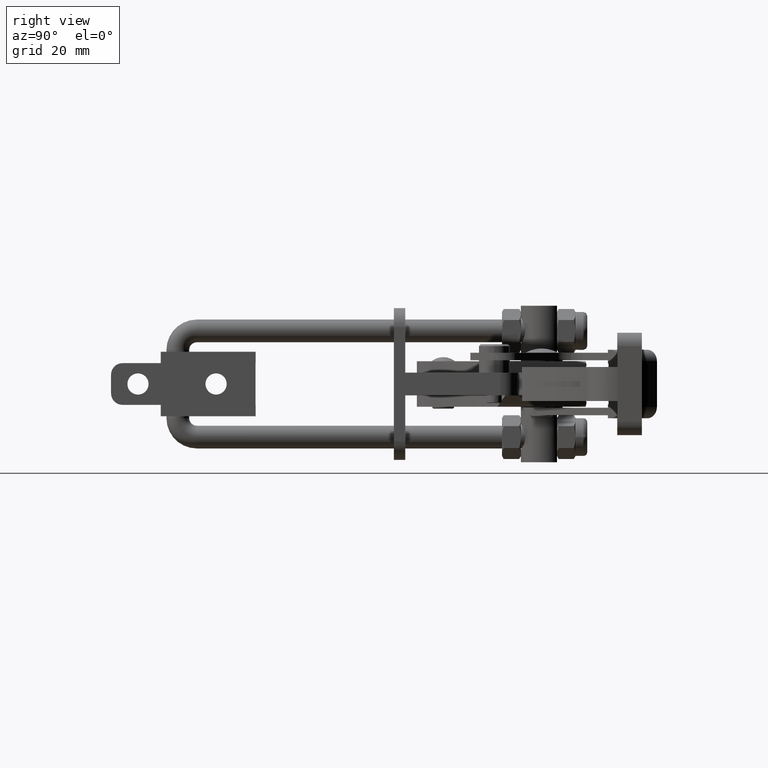
[diagram: clean part render]
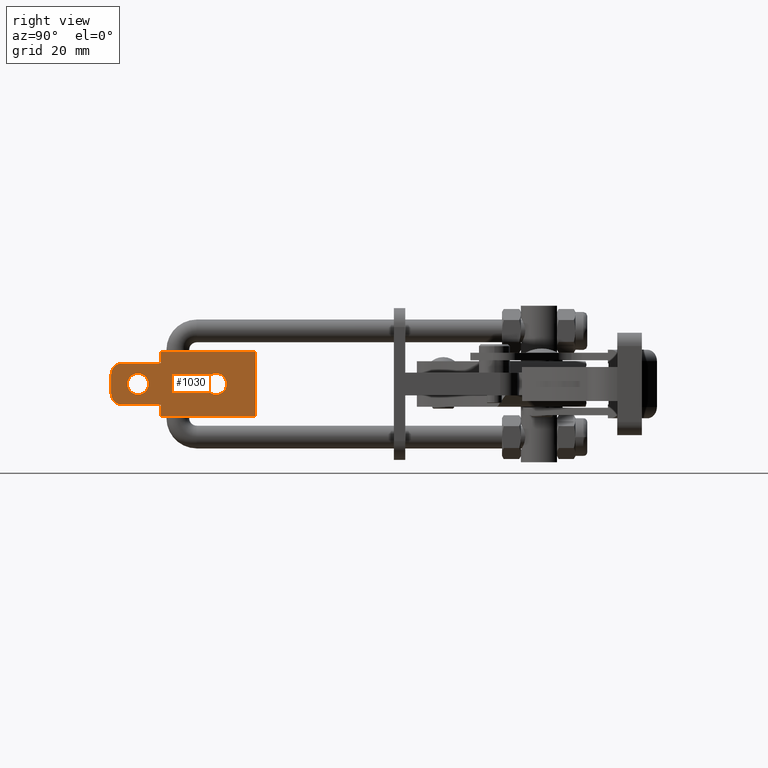
[diagram: same view with one face highlighted and labeled with its STEP entity id]
A machine part, right view. The second image highlights one B-rep face of the part: STEP entity #1030.
In plain terms, the highlighted planar face has unit normal (-1, -0, 0).
Its self-contained STEP definition (entity closure, byte-faithful):
#369 = DIRECTION ( 'NONE',  ( -1.979319486089536500E-015, 1.000000000000000000, 1.540743955509781800E-033 ) ) ;
#371 = CARTESIAN_POINT ( 'NONE',  ( -33.70844199254533200, -71.60965776514484600, 5.499999999999991100 ) ) ;
#418 = DIRECTION ( 'NONE',  ( -1.000000000000000000, -1.979319486089536500E-015, 6.162975822039154700E-033 ) ) ;
#802 = CARTESIAN_POINT ( 'NONE',  ( -33.70844199254539600, -36.50965776514480200, 8.499999999999992900 ) ) ;
#806 = LINE ( 'NONE', #6691, #3451 ) ;
#976 = ORIENTED_EDGE ( 'NONE', *, *, #12833, .F. ) ;
#978 = CARTESIAN_POINT ( 'NONE',  ( -33.70844199254532500, -74.60965776514483100, -2.500000000000002200 ) ) ;
#1030 = ADVANCED_FACE ( 'NONE', ( #10177, #13116, #7134 ), #7761, .F. ) ;
#1104 = LINE ( 'NONE', #7759, #1812 ) ;
#1333 = EDGE_CURVE ( 'NONE', #6115, #4898, #1858, .T. ) ;
#1383 = AXIS2_PLACEMENT_3D ( 'NONE', #11584, #4837, #12710 ) ;
#1530 = CARTESIAN_POINT ( 'NONE',  ( -33.70844199254535300, -61.49975701538111400, -5.500000000000000900 ) ) ;
#1574 = VERTEX_POINT ( 'NONE', #2424 ) ;
#1741 = DIRECTION ( 'NONE',  ( 1.979319486089536500E-015, -1.000000000000000000, -1.540743955509781800E-033 ) ) ;
#1787 = CIRCLE ( 'NONE', #12675, 2.799999999999999800 ) ;
#1812 = VECTOR ( 'NONE', #10091, 1000.000000000000000 ) ;
#1858 = LINE ( 'NONE', #4295, #8206 ) ;
#1884 = DIRECTION ( 'NONE',  ( 0.0000000000000000000, 0.0000000000000000000, 1.000000000000000000 ) ) ;
#2001 = EDGE_LOOP ( 'NONE', ( #2995, #11979 ) ) ;
#2177 = DIRECTION ( 'NONE',  ( 6.162975822039157500E-033, 0.0000000000000000000, 1.000000000000000000 ) ) ;
#2424 = CARTESIAN_POINT ( 'NONE',  ( -33.70844199254533900, -67.50965776514483700, -2.799999999999999800 ) ) ;
#2465 = ORIENTED_EDGE ( 'NONE', *, *, #13809, .T. ) ;
#2500 = VERTEX_POINT ( 'NONE', #7831 ) ;
#2696 = EDGE_CURVE ( 'NONE', #3121, #14350, #5400, .T. ) ;
#2932 = VECTOR ( 'NONE', #369, 1000.000000000000000 ) ;
#2995 = ORIENTED_EDGE ( 'NONE', *, *, #10243, .T. ) ;
#3072 = DIRECTION ( 'NONE',  ( 1.979319486089536500E-015, -1.000000000000000000, -1.540743955509781800E-033 ) ) ;
#3088 = CARTESIAN_POINT ( 'NONE',  ( -33.70844199254533900, -67.50965776514483700, 4.365699918357225300E-017 ) ) ;
#3121 = VERTEX_POINT ( 'NONE', #9950 ) ;
#3142 = ORIENTED_EDGE ( 'NONE', *, *, #9841, .F. ) ;
#3231 = CARTESIAN_POINT ( 'NONE',  ( -33.70844199254533200, -71.60965776514483100, -5.500000000000005300 ) ) ;
#3386 = LINE ( 'NONE', #7962, #11679 ) ;
#3451 = VECTOR ( 'NONE', #5566, 1000.000000000000000 ) ;
#3493 = CARTESIAN_POINT ( 'NONE',  ( -33.70844199254535300, -61.49975701538112100, 8.499999999999992900 ) ) ;
#3735 = VERTEX_POINT ( 'NONE', #12055 ) ;
#4194 = VECTOR ( 'NONE', #3072, 1000.000000000000000 ) ;
#4204 = DIRECTION ( 'NONE',  ( 0.0000000000000000000, 0.0000000000000000000, 1.000000000000000000 ) ) ;
#4205 = EDGE_CURVE ( 'NONE', #8193, #6349, #3386, .T. ) ;
#4295 = CARTESIAN_POINT ( 'NONE',  ( -33.70844199254532500, -74.60965776514483100, 2.500000000000002200 ) ) ;
#4537 = VERTEX_POINT ( 'NONE', #1530 ) ;
#4571 = AXIS2_PLACEMENT_3D ( 'NONE', #4968, #12823, #6121 ) ;
#4597 = EDGE_LOOP ( 'NONE', ( #6765, #13546, #6330, #3142, #11205, #7961, #6403, #976, #12773, #2465 ) ) ;
#4641 = VERTEX_POINT ( 'NONE', #371 ) ;
#4837 = DIRECTION ( 'NONE',  ( -1.000000000000000000, -1.979319486089536500E-015, 6.162975822039154700E-033 ) ) ;
#4898 = VERTEX_POINT ( 'NONE', #13143 ) ;
#4968 = CARTESIAN_POINT ( 'NONE',  ( -33.70844199254533200, -71.60965776514481700, -2.500000000000016000 ) ) ;
#5400 = CIRCLE ( 'NONE', #7144, 2.799999999999999800 ) ;
#5518 = AXIS2_PLACEMENT_3D ( 'NONE', #3088, #10980, #4204 ) ;
#5566 = DIRECTION ( 'NONE',  ( -6.162975822039157500E-033, 0.0000000000000000000, -1.000000000000000000 ) ) ;
#5957 = LINE ( 'NONE', #13826, #2932 ) ;
#6115 = VERTEX_POINT ( 'NONE', #978 ) ;
#6121 = DIRECTION ( 'NONE',  ( 0.0000000000000000000, 0.0000000000000000000, 1.000000000000000000 ) ) ;
#6330 = ORIENTED_EDGE ( 'NONE', *, *, #11968, .F. ) ;
#6349 = VERTEX_POINT ( 'NONE', #12606 ) ;
#6403 = ORIENTED_EDGE ( 'NONE', *, *, #1333, .F. ) ;
#6551 = AXIS2_PLACEMENT_3D ( 'NONE', #11033, #14417, #11921 ) ;
#6558 = EDGE_CURVE ( 'NONE', #4641, #2500, #11942, .T. ) ;
#6691 = CARTESIAN_POINT ( 'NONE',  ( -33.70844199254535300, -61.49975701538111400, -5.500000000000000900 ) ) ;
#6692 = EDGE_CURVE ( 'NONE', #4898, #4641, #10194, .T. ) ;
#6711 = DIRECTION ( 'NONE',  ( 0.0000000000000000000, 0.0000000000000000000, 1.000000000000000000 ) ) ;
#6734 = DIRECTION ( 'NONE',  ( -1.000000000000000000, -1.979319486089536500E-015, 6.162975822039154700E-033 ) ) ;
#6755 = CARTESIAN_POINT ( 'NONE',  ( -33.70844199254533200, -71.60965776514483100, 2.500000000000002200 ) ) ;
#6765 = ORIENTED_EDGE ( 'NONE', *, *, #8078, .F. ) ;
#7120 = CARTESIAN_POINT ( 'NONE',  ( -33.70844199254537400, -46.90965776514482100, 4.365699918357228400E-017 ) ) ;
#7134 = FACE_OUTER_BOUND ( 'NONE', #4597, .T. ) ;
#7144 = AXIS2_PLACEMENT_3D ( 'NONE', #8082, #9269, #1884 ) ;
#7322 = CIRCLE ( 'NONE', #4571, 3.000000000000002700 ) ;
#7343 = EDGE_CURVE ( 'NONE', #4537, #3735, #7539, .T. ) ;
#7539 = LINE ( 'NONE', #3231, #4194 ) ;
#7759 = CARTESIAN_POINT ( 'NONE',  ( -33.70844199254535300, -61.49975701538112100, 5.499999999999993800 ) ) ;
#7761 = PLANE ( 'NONE',  #6551 ) ;
#7831 = CARTESIAN_POINT ( 'NONE',  ( -33.70844199254535300, -61.49975701538112100, 5.499999999999993800 ) ) ;
#7873 = DIRECTION ( 'NONE',  ( 3.225434180863015100E-030, -1.632680918566407600E-015, -1.000000000000000000 ) ) ;
#7961 = ORIENTED_EDGE ( 'NONE', *, *, #6692, .F. ) ;
#7962 = CARTESIAN_POINT ( 'NONE',  ( -33.70844199254539600, -36.50965776514480200, 8.499999999999992900 ) ) ;
#8078 = EDGE_CURVE ( 'NONE', #6349, #9176, #9689, .T. ) ;
#8082 = CARTESIAN_POINT ( 'NONE',  ( -33.70844199254537400, -46.90965776514482100, 4.365699918357228400E-017 ) ) ;
#8193 = VERTEX_POINT ( 'NONE', #802 ) ;
#8201 = ORIENTED_EDGE ( 'NONE', *, *, #11948, .T. ) ;
#8206 = VECTOR ( 'NONE', #2177, 1000.000000000000000 ) ;
#8227 = VECTOR ( 'NONE', #1741, 1000.000000000000000 ) ;
#8296 = DIRECTION ( 'NONE',  ( 0.0000000000000000000, 0.0000000000000000000, 1.000000000000000000 ) ) ;
#8546 = AXIS2_PLACEMENT_3D ( 'NONE', #6755, #6734, #6711 ) ;
#8631 = CARTESIAN_POINT ( 'NONE',  ( -33.70844199254537400, -46.90965776514482900, -2.799999999999999800 ) ) ;
#9176 = VERTEX_POINT ( 'NONE', #9770 ) ;
#9196 = CARTESIAN_POINT ( 'NONE',  ( -33.70844199254533200, -71.60965776514484600, 5.499999999999991100 ) ) ;
#9269 = DIRECTION ( 'NONE',  ( -1.000000000000000000, -1.979319486089536500E-015, 6.162975822039154700E-033 ) ) ;
#9293 = DIRECTION ( 'NONE',  ( -1.979319486089536500E-015, 1.000000000000000000, 1.540743955509781800E-033 ) ) ;
#9325 = EDGE_LOOP ( 'NONE', ( #12530, #8201 ) ) ;
#9671 = CARTESIAN_POINT ( 'NONE',  ( -33.70844199254536000, -57.50965776514480200, -8.500000000000000000 ) ) ;
#9689 = LINE ( 'NONE', #9671, #8227 ) ;
#9770 = CARTESIAN_POINT ( 'NONE',  ( -33.70844199254535300, -61.49975701538111400, -8.500000000000000000 ) ) ;
#9841 = EDGE_CURVE ( 'NONE', #2500, #13925, #1104, .T. ) ;
#9920 = VERTEX_POINT ( 'NONE', #12451 ) ;
#9950 = CARTESIAN_POINT ( 'NONE',  ( -33.70844199254537400, -46.90965776514482900, 2.799999999999999800 ) ) ;
#10091 = DIRECTION ( 'NONE',  ( 6.162975822039157500E-033, 0.0000000000000000000, 1.000000000000000000 ) ) ;
#10177 = FACE_BOUND ( 'NONE', #2001, .T. ) ;
#10194 = CIRCLE ( 'NONE', #8546, 2.999999999999995600 ) ;
#10243 = EDGE_CURVE ( 'NONE', #14350, #3121, #1787, .T. ) ;
#10763 = CIRCLE ( 'NONE', #5518, 2.799999999999999800 ) ;
#10925 = EDGE_CURVE ( 'NONE', #1574, #9920, #10763, .T. ) ;
#10980 = DIRECTION ( 'NONE',  ( -1.000000000000000000, -1.979319486089536500E-015, 6.162975822039154700E-033 ) ) ;
#11033 = CARTESIAN_POINT ( 'NONE',  ( -33.70844199254533200, -71.60965776514481700, -2.500000000000016000 ) ) ;
#11205 = ORIENTED_EDGE ( 'NONE', *, *, #6558, .F. ) ;
#11584 = CARTESIAN_POINT ( 'NONE',  ( -33.70844199254533900, -67.50965776514483700, 4.365699918357225300E-017 ) ) ;
#11679 = VECTOR ( 'NONE', #7873, 1000.000000000000000 ) ;
#11921 = DIRECTION ( 'NONE',  ( 6.162975822039157500E-033, 0.0000000000000000000, 1.000000000000000000 ) ) ;
#11927 = CIRCLE ( 'NONE', #1383, 2.799999999999999800 ) ;
#11942 = LINE ( 'NONE', #9196, #14500 ) ;
#11948 = EDGE_CURVE ( 'NONE', #9920, #1574, #11927, .T. ) ;
#11968 = EDGE_CURVE ( 'NONE', #13925, #8193, #5957, .T. ) ;
#11979 = ORIENTED_EDGE ( 'NONE', *, *, #2696, .T. ) ;
#12055 = CARTESIAN_POINT ( 'NONE',  ( -33.70844199254533200, -71.60965776514483100, -5.500000000000005300 ) ) ;
#12451 = CARTESIAN_POINT ( 'NONE',  ( -33.70844199254533900, -67.50965776514483700, 2.799999999999999800 ) ) ;
#12530 = ORIENTED_EDGE ( 'NONE', *, *, #10925, .T. ) ;
#12606 = CARTESIAN_POINT ( 'NONE',  ( -33.70844199254539600, -36.50965776514483000, -8.500000000000000000 ) ) ;
#12675 = AXIS2_PLACEMENT_3D ( 'NONE', #7120, #418, #8296 ) ;
#12710 = DIRECTION ( 'NONE',  ( 0.0000000000000000000, 0.0000000000000000000, 1.000000000000000000 ) ) ;
#12773 = ORIENTED_EDGE ( 'NONE', *, *, #7343, .F. ) ;
#12823 = DIRECTION ( 'NONE',  ( -1.000000000000000000, -1.979319486089536500E-015, 6.162975822039154700E-033 ) ) ;
#12833 = EDGE_CURVE ( 'NONE', #3735, #6115, #7322, .T. ) ;
#13116 = FACE_BOUND ( 'NONE', #9325, .T. ) ;
#13143 = CARTESIAN_POINT ( 'NONE',  ( -33.70844199254532500, -74.60965776514483100, 2.500000000000001800 ) ) ;
#13546 = ORIENTED_EDGE ( 'NONE', *, *, #4205, .F. ) ;
#13809 = EDGE_CURVE ( 'NONE', #4537, #9176, #806, .T. ) ;
#13826 = CARTESIAN_POINT ( 'NONE',  ( -33.70844199254536000, -57.50965776514481600, 8.499999999999992900 ) ) ;
#13925 = VERTEX_POINT ( 'NONE', #3493 ) ;
#14350 = VERTEX_POINT ( 'NONE', #8631 ) ;
#14417 = DIRECTION ( 'NONE',  ( -1.000000000000000000, -1.979319486089536500E-015, 6.162975822039157500E-033 ) ) ;
#14500 = VECTOR ( 'NONE', #9293, 1000.000000000000000 ) ;